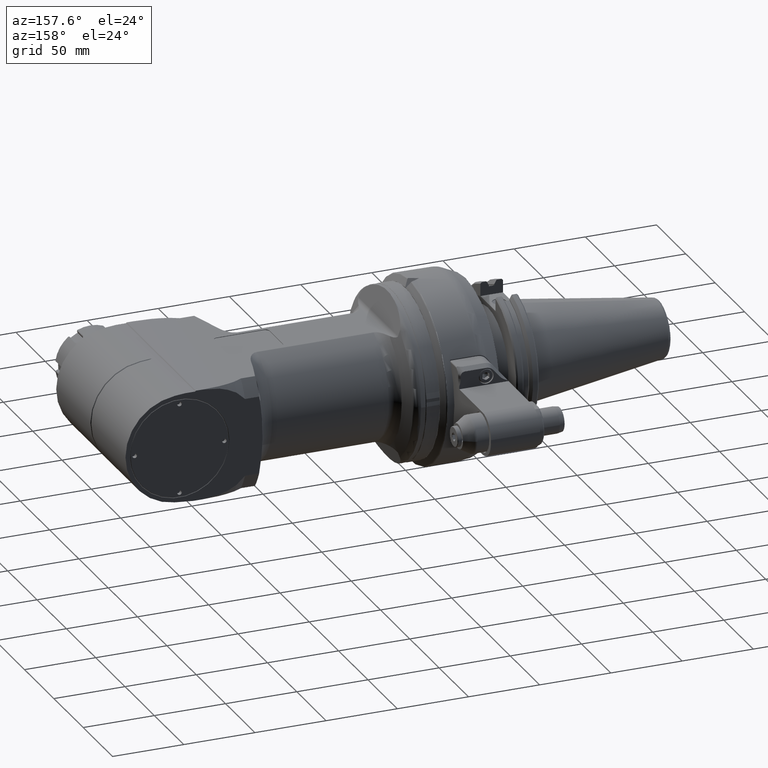
[diagram: clean part render]
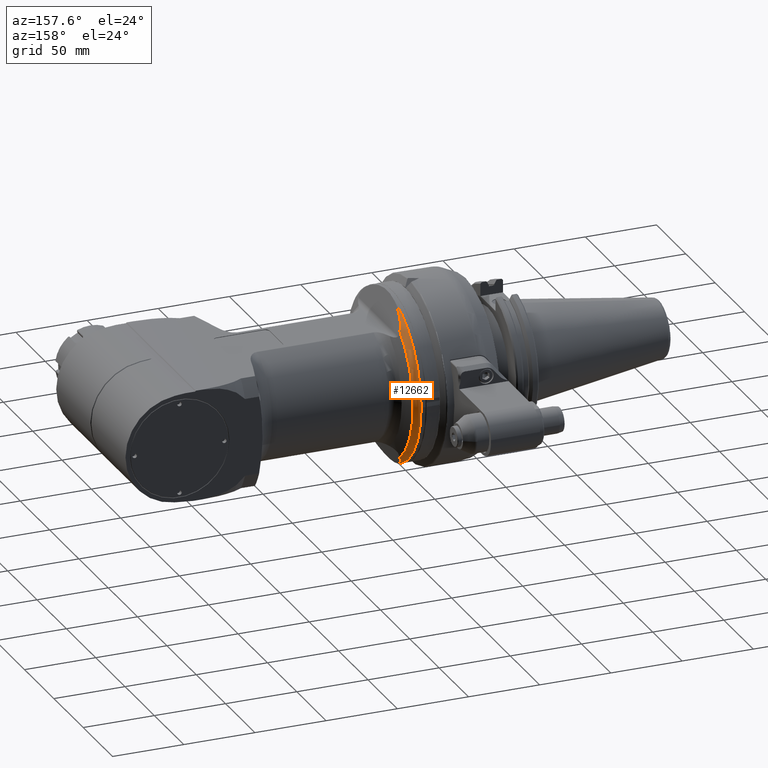
[diagram: same view with one face highlighted and labeled with its STEP entity id]
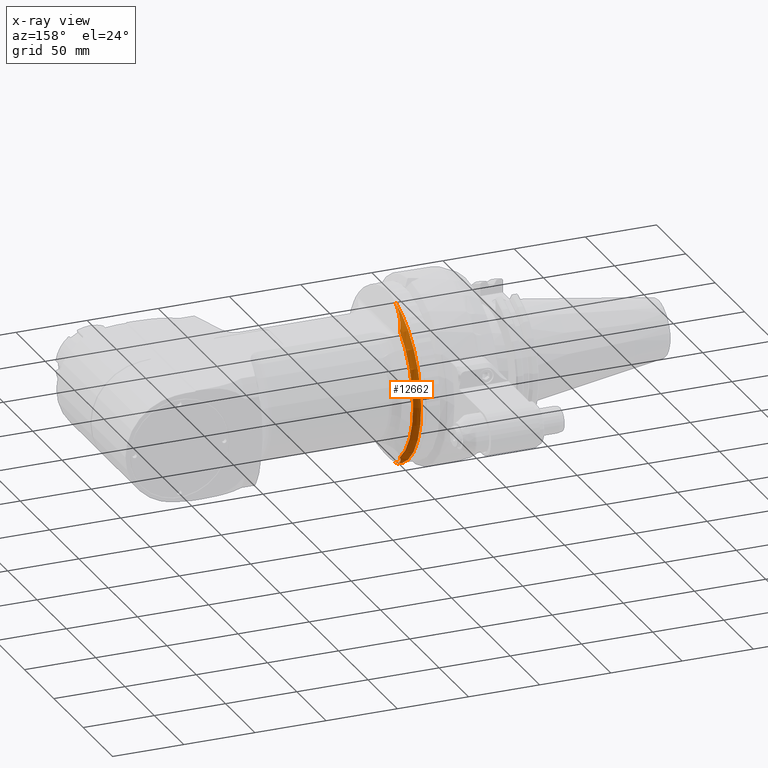
[diagram: x-ray of the same camera — body ghosted, the highlighted face saturated]
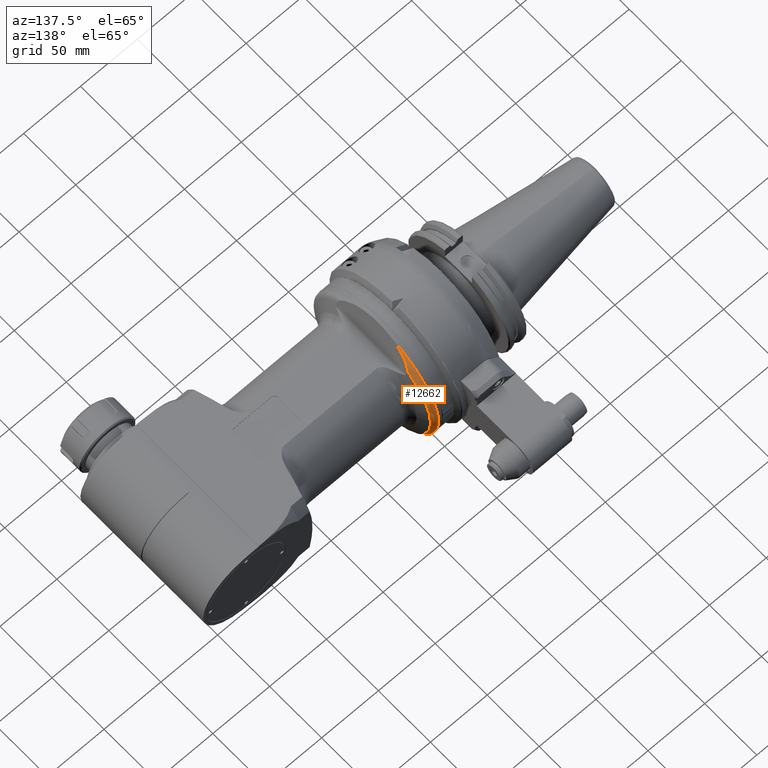
[diagram: same view with one face highlighted and labeled with its STEP entity id]
A machine part, auxiliary view. The second image highlights one B-rep face of the part: STEP entity #12662.
The next image is the same camera in x-ray: the body ghosted, the highlighted face saturated — about 0% of this face is hidden behind the body in this view.
A second angle (auxiliary view) of the same face is appended — the face is thin or edge-on in the first view.
In plain terms, the highlighted toroidal blend (fillet) surface has major radius 54 mm and minor (blend) radius 5 mm.
Its self-contained STEP definition (entity closure, byte-faithful):
#366=B_SPLINE_CURVE_WITH_KNOTS('',3,(#35403,#35404,#35405,#35406,#35407,
#35408,#35409,#35410,#35411,#35412,#35413,#35414,#35415,#35416,#35417,#35418),
 .UNSPECIFIED.,.F.,.F.,(4,2,2,2,2,2,2,4),(-3.64163581620894,-3.52897746652119,
-3.25756611473002,-2.89609353544465,-2.53462095615927,-2.19911000582405,
-1.86359905548882,-1.30272274856044),.UNSPECIFIED.);
#375=B_SPLINE_CURVE_WITH_KNOTS('',3,(#35758,#35759,#35760,#35761,#35762,
#35763,#35764,#35765,#35766,#35767,#35768,#35769,#35770,#35771,#35772,#35773),
 .UNSPECIFIED.,.F.,.F.,(4,2,2,2,2,2,2,4),(-12.6272943720539,-12.0664180651256,
-11.7309071147903,-11.3953961644551,-11.0339235851697,-10.6724510058844,
-10.4010396540932,-10.2883813044012),.UNSPECIFIED.);
#668=TOROIDAL_SURFACE('',#13933,54.,5.);
#1147=CIRCLE('',#13859,56.1130913087);
#1176=CIRCLE('',#13934,59.);
#1177=CIRCLE('',#13935,59.);
#1753=FACE_OUTER_BOUND('',#2492,.T.);
#2492=EDGE_LOOP('',(#10612,#10613,#10614,#10615,#10616));
#5765=VERTEX_POINT('',#35342);
#5766=VERTEX_POINT('',#35344);
#5770=VERTEX_POINT('',#35402);
#5817=VERTEX_POINT('',#35756);
#5818=VERTEX_POINT('',#35775);
#7462=EDGE_CURVE('',#5766,#5765,#1147,.T.);
#7468=EDGE_CURVE('',#5766,#5770,#366,.T.);
#7551=EDGE_CURVE('',#5817,#5765,#375,.T.);
#7552=EDGE_CURVE('',#5817,#5818,#1176,.T.);
#7553=EDGE_CURVE('',#5818,#5770,#1177,.T.);
#10612=ORIENTED_EDGE('',*,*,#7552,.T.);
#10613=ORIENTED_EDGE('',*,*,#7553,.T.);
#10614=ORIENTED_EDGE('',*,*,#7468,.F.);
#10615=ORIENTED_EDGE('',*,*,#7462,.T.);
#10616=ORIENTED_EDGE('',*,*,#7551,.F.);
#12662=ADVANCED_FACE('',(#1753),#668,.T.);
#13859=AXIS2_PLACEMENT_3D('',#35345,#16497,#16498);
#13933=AXIS2_PLACEMENT_3D('',#35774,#16677,#16678);
#13934=AXIS2_PLACEMENT_3D('',#35776,#16679,#16680);
#13935=AXIS2_PLACEMENT_3D('',#35777,#16681,#16682);
#16497=DIRECTION('center_axis',(-1.,0.,0.));
#16498=DIRECTION('ref_axis',(0.,1.,0.));
#16677=DIRECTION('center_axis',(1.,0.,0.));
#16678=DIRECTION('ref_axis',(0.,1.,-1.22464679914735E-16));
#16679=DIRECTION('center_axis',(1.,0.,0.));
#16680=DIRECTION('ref_axis',(0.,1.,0.));
#16681=DIRECTION('center_axis',(1.,0.,0.));
#16682=DIRECTION('ref_axis',(0.,1.,0.));
#35342=CARTESIAN_POINT('',(7.846187631146,33.63172059327,-44.91755098127));
#35344=CARTESIAN_POINT('',(7.84618763113,33.63172059327,44.91755098131));
#35345=CARTESIAN_POINT('Origin',(7.846187631146,0.,0.));
#35402=CARTESIAN_POINT('',(3.314648695962,13.78149377069,57.36785188107));
#35403=CARTESIAN_POINT('Ctrl Pts',(7.84618763113013,33.6317205932723,44.9175509813102));
#35404=CARTESIAN_POINT('Ctrl Pts',(7.71530985281198,33.6197540636231,45.2771347219476));
#35405=CARTESIAN_POINT('Ctrl Pts',(7.57026522869752,33.4835885470667,45.6756415515153));
#35406=CARTESIAN_POINT('Ctrl Pts',(7.16909850949425,32.9705359441782,46.7778380539629));
#35407=CARTESIAN_POINT('Ctrl Pts',(6.87104215522273,32.3230901414021,47.5967411570488));
#35408=CARTESIAN_POINT('Ctrl Pts',(6.32801327716356,30.9339739855879,49.088700737628));
#35409=CARTESIAN_POINT('Ctrl Pts',(6.02239820293147,29.963936366736,49.9283712531255));
#35410=CARTESIAN_POINT('Ctrl Pts',(5.46289604848946,27.8972368296097,51.465590788591));
#35411=CARTESIAN_POINT('Ctrl Pts',(5.2091633310234,26.8002177085633,52.1627157004058));
#35412=CARTESIAN_POINT('Ctrl Pts',(4.79648288173122,24.8148344807597,53.2965459162864));
#35413=CARTESIAN_POINT('Ctrl Pts',(4.59492879437546,23.7361766268213,53.850311220095));
#35414=CARTESIAN_POINT('Ctrl Pts',(4.22763349072792,21.5273339776917,54.8594467731383));
#35415=CARTESIAN_POINT('Ctrl Pts',(4.06169591753835,20.3974283501894,55.3153565085156));
#35416=CARTESIAN_POINT('Ctrl Pts',(3.69190357563575,17.6119489127631,56.3313526177802));
#35417=CARTESIAN_POINT('Ctrl Pts',(3.48515060738546,15.7314985639883,56.899401729453));
#35418=CARTESIAN_POINT('Ctrl Pts',(3.31464869595926,13.7814937706903,57.3678518810703));
#35756=CARTESIAN_POINT('',(3.314648695962,13.78149377069,-57.36785188107));
#35758=CARTESIAN_POINT('Ctrl Pts',(3.31464869595926,13.7814937706903,-57.3678518810703));
#35759=CARTESIAN_POINT('Ctrl Pts',(3.48515060738546,15.7314985639883,-56.899401729453));
#35760=CARTESIAN_POINT('Ctrl Pts',(3.69190357563575,17.6119489127631,-56.3313526177802));
#35761=CARTESIAN_POINT('Ctrl Pts',(4.06169591753835,20.3974283501894,-55.3153565085156));
#35762=CARTESIAN_POINT('Ctrl Pts',(4.22763349072792,21.5273339776917,-54.8594467731383));
#35763=CARTESIAN_POINT('Ctrl Pts',(4.59492879437546,23.7361766268213,-53.850311220095));
#35764=CARTESIAN_POINT('Ctrl Pts',(4.79648288173122,24.8148344807597,-53.2965459162864));
#35765=CARTESIAN_POINT('Ctrl Pts',(5.2091633310234,26.8002177085633,-52.1627157004058));
#35766=CARTESIAN_POINT('Ctrl Pts',(5.46289604848947,27.8972368296097,-51.465590788591));
#35767=CARTESIAN_POINT('Ctrl Pts',(6.02239820293147,29.963936366736,-49.9283712531255));
#35768=CARTESIAN_POINT('Ctrl Pts',(6.32801327716356,30.9339739855879,-49.088700737628));
#35769=CARTESIAN_POINT('Ctrl Pts',(6.87104215522273,32.3230901414021,-47.5967411570488));
#35770=CARTESIAN_POINT('Ctrl Pts',(7.16909850949425,32.9705359441782,-46.7778380539629));
#35771=CARTESIAN_POINT('Ctrl Pts',(7.57026522870193,33.4835885470723,-45.6756415515032));
#35772=CARTESIAN_POINT('Ctrl Pts',(7.71530985282287,33.6197540636328,-45.2771347219177));
#35773=CARTESIAN_POINT('Ctrl Pts',(7.84618763114485,33.6317205932737,-44.9175509812697));
#35774=CARTESIAN_POINT('Origin',(3.314648695962,0.,0.));
#35775=CARTESIAN_POINT('',(3.314648695962,59.,7.22541611496938E-15));
#35776=CARTESIAN_POINT('Origin',(3.314648695962,0.,0.));
#35777=CARTESIAN_POINT('Origin',(3.314648695962,0.,0.));